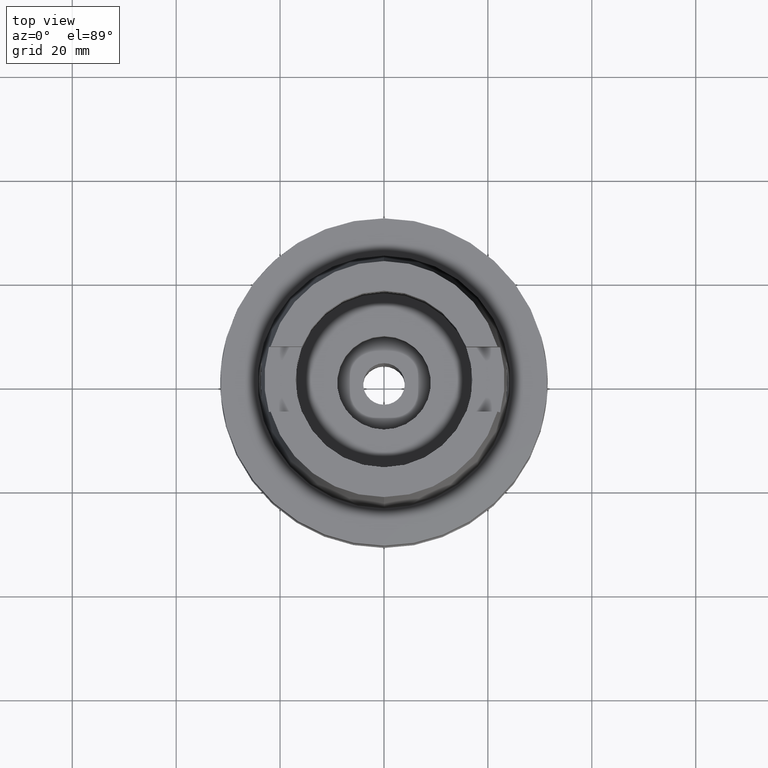
[diagram: clean part render]
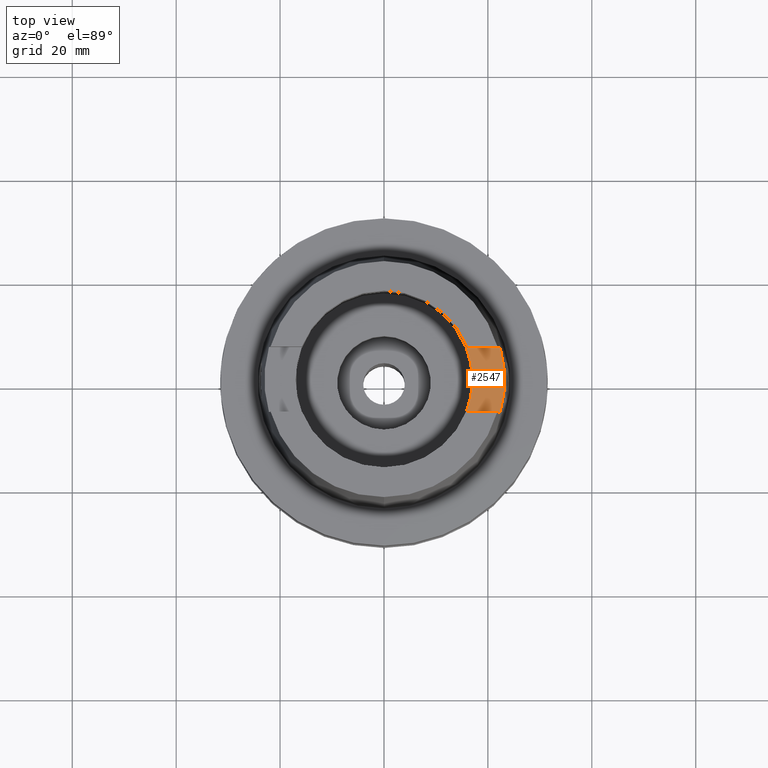
[diagram: same view with one face highlighted and labeled with its STEP entity id]
A machine part, top view. The second image highlights one B-rep face of the part: STEP entity #2547.
In plain terms, the highlighted planar face has unit normal (0, 0, -1).
Its self-contained STEP definition (entity closure, byte-faithful):
#39=DIRECTION('',(1.E0,4.989489658624E-14,0.E0));
#40=VECTOR('',#39,6.550763320748E0);
#41=CARTESIAN_POINT('',(1.580149043603E1,-6.27E0,2.2E1));
#42=LINE('',#41,#40);
#46=CARTESIAN_POINT('',(0.E0,1.683277025428E-14,2.2E1));
#47=DIRECTION('',(0.E0,0.E0,1.E0));
#48=DIRECTION('',(9.294994374136E-1,-3.688235294118E-1,0.E0));
#49=AXIS2_PLACEMENT_3D('',#46,#47,#48);
#54=DIRECTION('',(1.E0,-5.057281637681E-14,0.E0));
#55=VECTOR('',#54,6.550763320748E0);
#56=CARTESIAN_POINT('',(1.580149043603E1,6.27E0,2.2E1));
#57=LINE('',#56,#55);
#61=CARTESIAN_POINT('',(0.E0,1.420590287011E-14,2.2E1));
#62=DIRECTION('',(0.E0,0.E0,-1.E0));
#63=DIRECTION('',(9.628367587079E-1,2.700840167076E-1,0.E0));
#64=AXIS2_PLACEMENT_3D('',#61,#62,#63);
#2159=CARTESIAN_POINT('',(1.580149043603E1,-6.27E0,2.2E1));
#2161=VERTEX_POINT('',#2159);
#2173=CARTESIAN_POINT('',(1.580149043603E1,6.27E0,2.2E1));
#2174=VERTEX_POINT('',#2173);
#2175=CARTESIAN_POINT('',(2.235225375678E1,-6.27E0,2.2E1));
#2176=VERTEX_POINT('',#2175);
#2178=CARTESIAN_POINT('',(2.235225375678E1,6.27E0,2.2E1));
#2179=VERTEX_POINT('',#2178);
#2534=CARTESIAN_POINT('',(3.15E1,-6.27E0,2.2E1));
#2535=DIRECTION('',(0.E0,0.E0,-1.E0));
#2536=DIRECTION('',(0.E0,1.E0,0.E0));
#2537=AXIS2_PLACEMENT_3D('',#2534,#2535,#2536);
#2538=PLANE('',#2537);
#2539=ORIENTED_EDGE('',*,*,#2514,.T.);
#2541=ORIENTED_EDGE('',*,*,#2540,.T.);
#2543=ORIENTED_EDGE('',*,*,#2542,.T.);
#2544=ORIENTED_EDGE('',*,*,#2525,.F.);
#2545=EDGE_LOOP('',(#2539,#2541,#2543,#2544));
#2546=FACE_OUTER_BOUND('',#2545,.F.);
#50=CIRCLE('',#49,1.7E1);
#65=CIRCLE('',#64,2.321499834175E1);
#2514=EDGE_CURVE('',#2161,#2174,#50,.T.);
#2525=EDGE_CURVE('',#2161,#2176,#42,.T.);
#2540=EDGE_CURVE('',#2174,#2179,#57,.T.);
#2542=EDGE_CURVE('',#2179,#2176,#65,.T.);
#2547=ADVANCED_FACE('',(#2546),#2538,.F.);